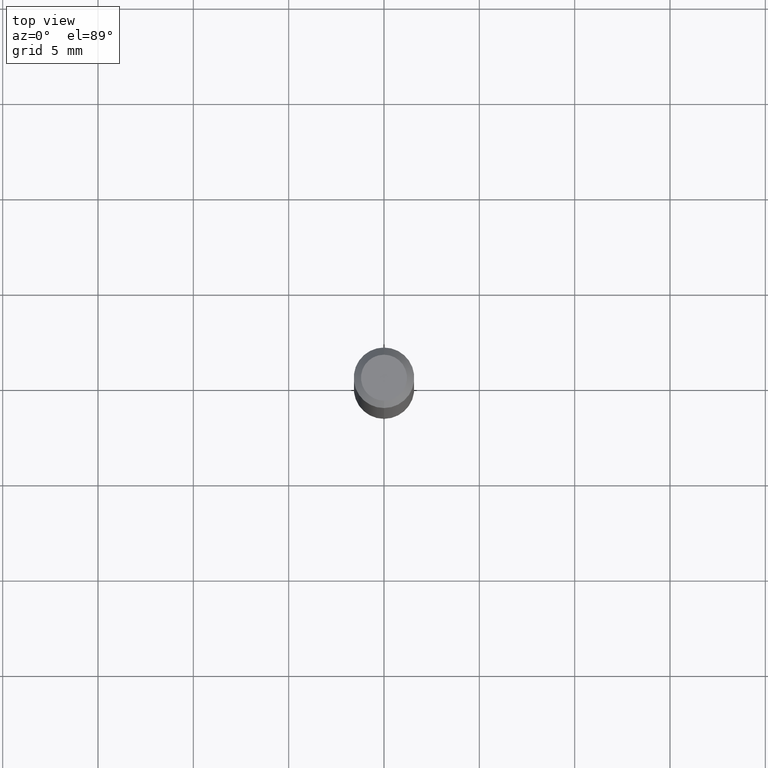
[diagram: clean part render]
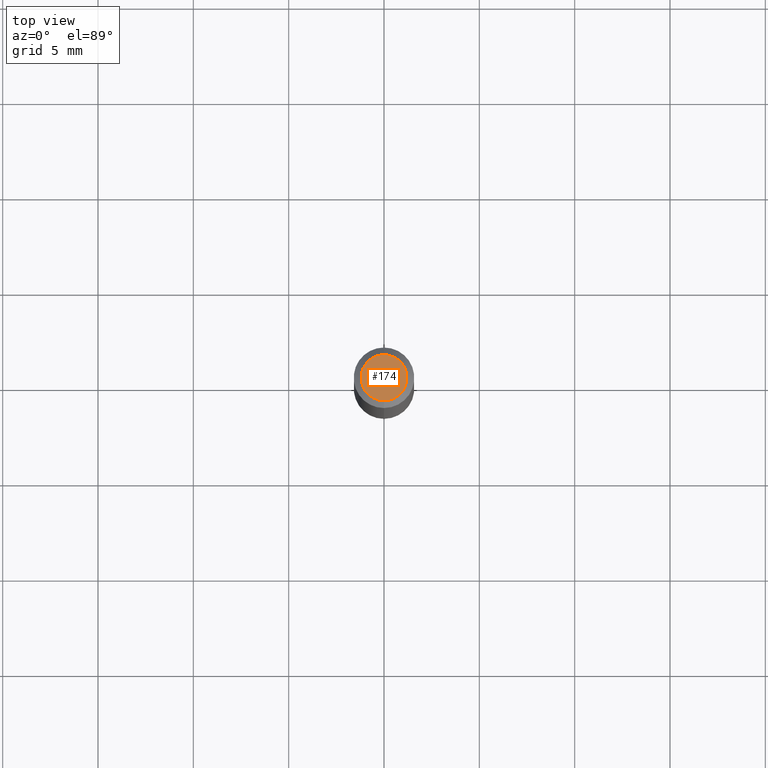
[diagram: same view with one face highlighted and labeled with its STEP entity id]
A machine part, top view. The second image highlights one B-rep face of the part: STEP entity #174.
In plain terms, the highlighted planar face has unit normal (0, -0, -1).
Its self-contained STEP definition (entity closure, byte-faithful):
#15 = DIRECTION ( 'NONE',  ( -2.445453003853940643E-29, 3.491503968680831010E-15, 1.000000000000000000 ) ) ;
#57 = VERTEX_POINT ( 'NONE', #230 ) ;
#59 = DIRECTION ( 'NONE',  ( -6.982962677686266711E-15, -1.000000000000000000, 3.491503968680831010E-15 ) ) ;
#135 = CIRCLE ( 'NONE', #335, 0.04749999999999999362 ) ;
#173 = CARTESIAN_POINT ( 'NONE',  ( 3.316907271900976096E-16, 0.04749999999999999362, -1.702760608496099716E-16 ) ) ;
#174 = ADVANCED_FACE ( 'NONE', ( #182 ), #340, .F. ) ;
#182 = FACE_OUTER_BOUND ( 'NONE', #240, .T. ) ;
#213 = CARTESIAN_POINT ( 'NONE',  ( -3.773273898774340269E-16, -0.04749999999999999362, 1.569871938377984195E-16 ) ) ;
#230 = CARTESIAN_POINT ( 'NONE',  ( 3.840629472727447874E-16, 0.04749999999999999362, -1.747056831868805136E-16 ) ) ;
#240 = EDGE_LOOP ( 'NONE', ( #308, #278 ) ) ;
#258 = AXIS2_PLACEMENT_3D ( 'NONE', #488, #15, #59 ) ;
#267 = CIRCLE ( 'NONE', #258, 0.04749999999999999362 ) ;
#278 = ORIENTED_EDGE ( 'NONE', *, *, #341, .T. ) ;
#286 = EDGE_CURVE ( 'NONE', #57, #359, #267, .T. ) ;
#302 = DIRECTION ( 'NONE',  ( -6.982962677686266711E-15, -1.000000000000000000, 3.491503968680831010E-15 ) ) ;
#308 = ORIENTED_EDGE ( 'NONE', *, *, #286, .T. ) ;
#333 = CARTESIAN_POINT ( 'NONE',  ( 2.166486650123342683E-46, -3.093208794067458567E-32, -8.859244674541047048E-18 ) ) ;
#335 = AXIS2_PLACEMENT_3D ( 'NONE', #333, #339, #302 ) ;
#339 = DIRECTION ( 'NONE',  ( -2.445453003853940643E-29, 3.491503968680831010E-15, 1.000000000000000000 ) ) ;
#340 = PLANE ( 'NONE',  #389 ) ;
#341 = EDGE_CURVE ( 'NONE', #359, #57, #135, .T. ) ;
#359 = VERTEX_POINT ( 'NONE', #213 ) ;
#389 = AXIS2_PLACEMENT_3D ( 'NONE', #173, #419, #498 ) ;
#419 = DIRECTION ( 'NONE',  ( 2.445453003853940363E-29, -3.491503968680831010E-15, -1.000000000000000000 ) ) ;
#488 = CARTESIAN_POINT ( 'NONE',  ( 2.166486650123342683E-46, -3.093208794067458567E-32, -8.859244674541047048E-18 ) ) ;
#498 = DIRECTION ( 'NONE',  ( 6.982962677686265922E-15, 1.000000000000000000, -3.491503968680831010E-15 ) ) ;